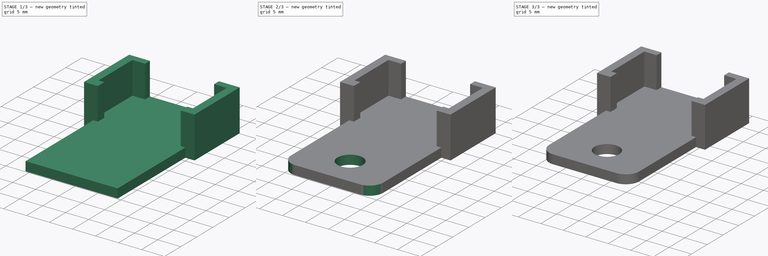
[diagram: build sequence overview — one tinted view per stage of 3, left to right]
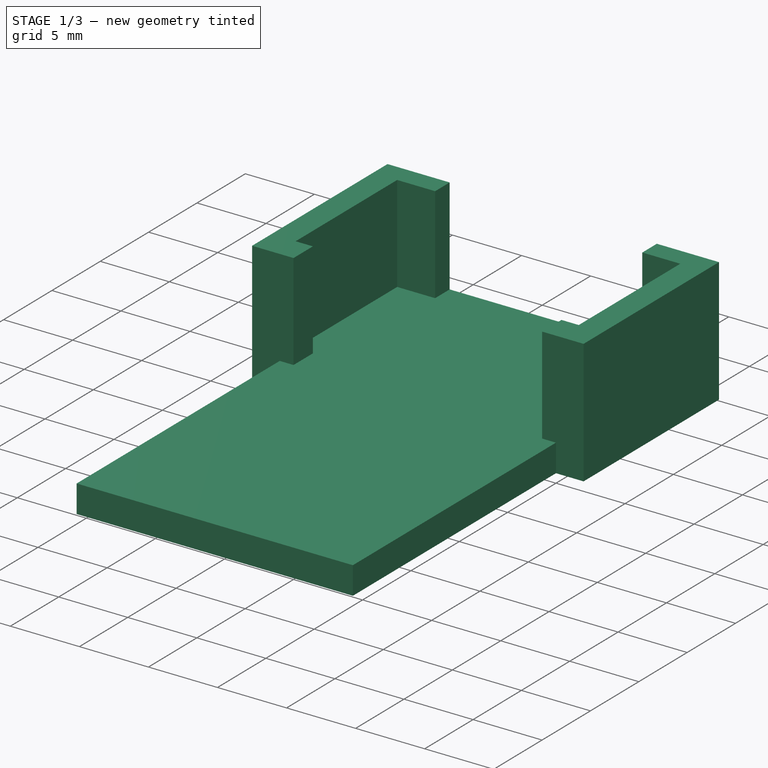
[diagram: stage 1 of 3 — iso view after this stage's code; geometry added in this stage tinted green]
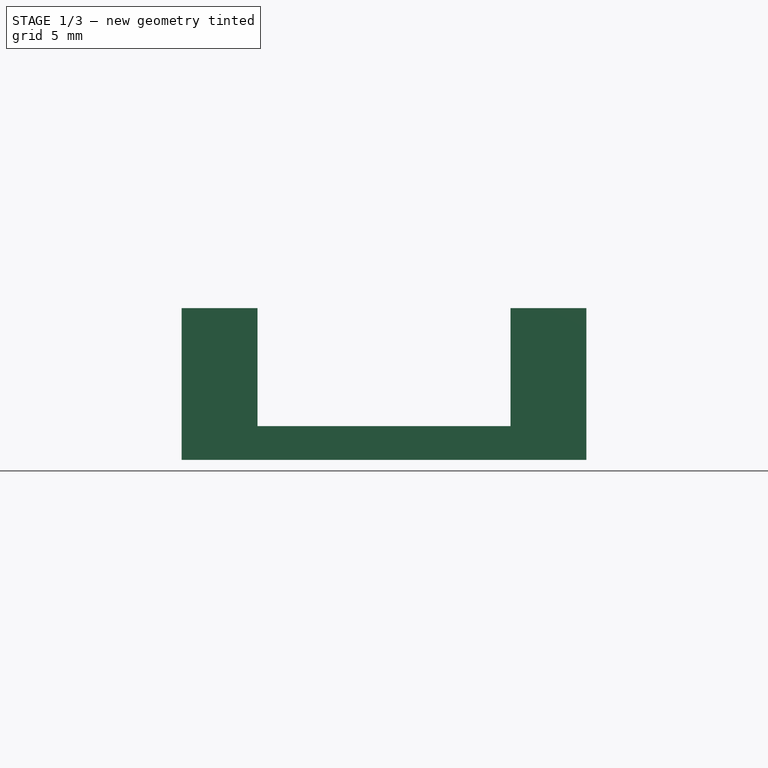
[diagram: stage 1 of 3 — front view after this stage's code; geometry added in this stage tinted green]
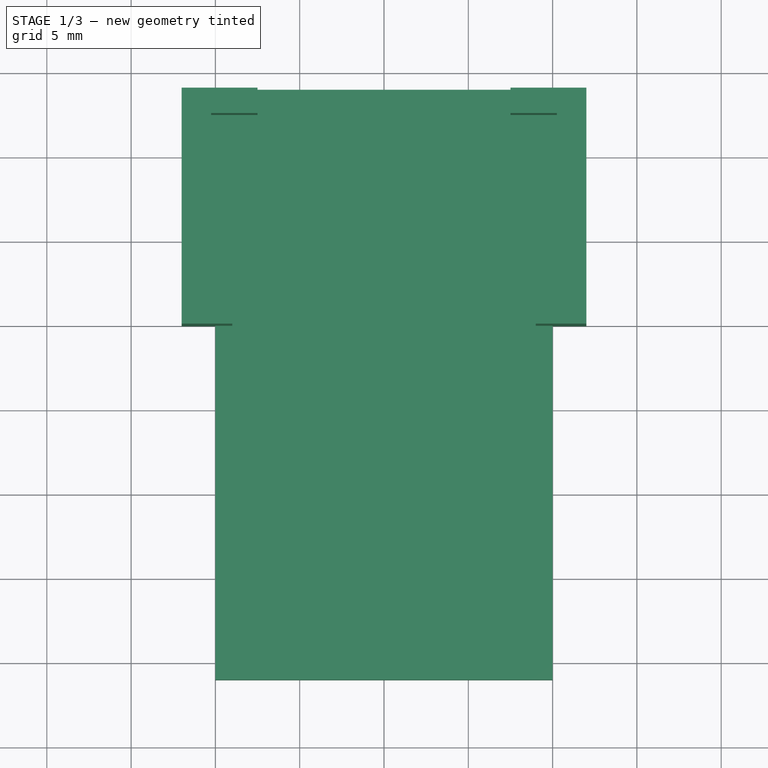
[diagram: stage 1 of 3 — top view after this stage's code; geometry added in this stage tinted green]
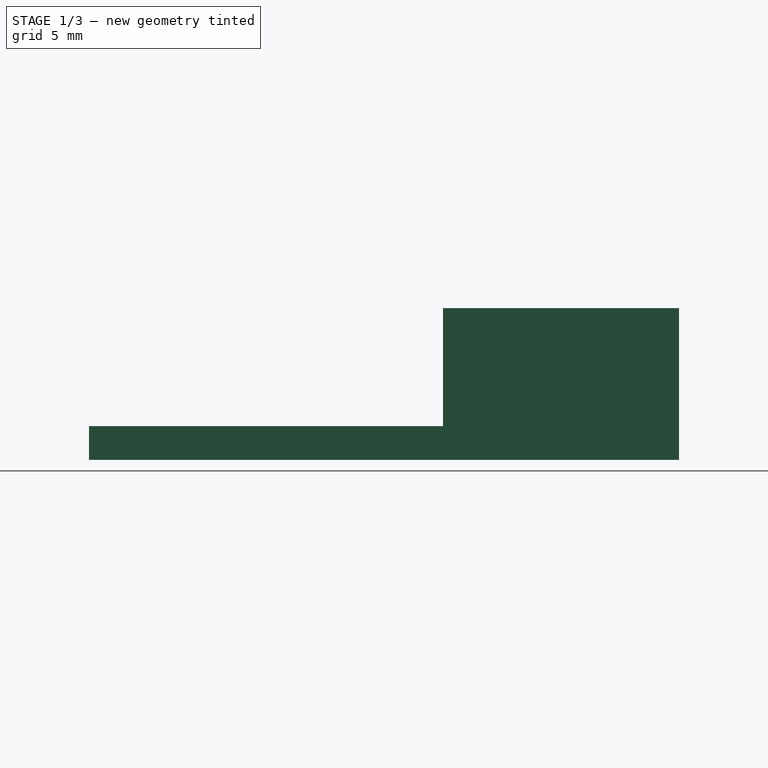
[diagram: stage 1 of 3 — right view after this stage's code; geometry added in this stage tinted green]
FCSTD DOCUMENT  (FreeCAD 0.18.4R)
Label: limit-switch
License: All rights reserved
LicenseURL: http://en.wikipedia.org/wiki/All_rights_reserved
objects: Sketcher::SketchObject×4, PartDesign::Pad×3, PartDesign::Pocket×2, PartDesign::Fillet×1, PartDesign::Body×1
note: 16 computed .brp shape members not serialized (recipe doc carries the construction recipe); baked Part::Feature solids carry a one-line shape summary decoded from their .brp

FEATURE [Sketcher::SketchObject] Sketch
  MapMode = 5
  Support = -> [XY_Plane]
  sketch-geometry (8):
    g0: LineSegment StartX=-12 StartY=14 StartZ=0 EndX=12 EndY=14 EndZ=0
    g1: LineSegment StartX=12 StartY=14 StartZ=0 EndX=12 EndY=0 EndZ=0
    g2: LineSegment StartX=12 StartY=0 StartZ=0 EndX=10 EndY=0 EndZ=0
    g3: LineSegment StartX=10 StartY=0 StartZ=0 EndX=10 EndY=-21 EndZ=0
    g4: LineSegment StartX=10 StartY=-21 StartZ=0 EndX=-10 EndY=-21 EndZ=0
    g5: LineSegment StartX=-10 StartY=-21 StartZ=0 EndX=-10 EndY=0 EndZ=0
    g6: LineSegment StartX=-10 StartY=0 StartZ=0 EndX=-12 EndY=0 EndZ=0
    g7: LineSegment StartX=-12 StartY=0 StartZ=0 EndX=-12 EndY=14 EndZ=0
  constraints (24):
    c: Horizontal(g0)
    c: Coincident(g1,g0)
    c: Vertical(g1)
    c: Coincident(g1,g2)
    c: Horizontal(g2)
    c: Coincident(g2,g3)
    c: Vertical(g3)
    c: Coincident(g3,g4)
    c: Horizontal(g4)
    c: Coincident(g4,g5)
    c: Vertical(g5)
    c: Coincident(g5,g6)
    c: Coincident(g6,g7)
    c: Coincident(g7,g0)
    c: Horizontal(g6)
    c: Vertical(g7)
    c: DistanceX(g0,g0) = 24
    c: DistanceX(g4,g4) = 20
    c: DistanceX(g6,g6) = 2
    c: DistanceY(g4,g0) = 35
    c: DistanceY(g1,g1) = 14
    c: Equal(g1,g7)
    c: PointOnObject(g5,g-1)
    c: DistanceX(g5,g-1) = 10
FEATURE [PartDesign::Pad] Pad
  Length = 2
  Length2 = 100
  Profile = -> Sketch
  Type = 0
FEATURE [Sketcher::SketchObject] Sketch001
  ExternalGeometry = -> [Pad]
  MapMode = 5
  Placement = pos=(0,0,2) rot=(0,0,1;0rad)
  Support = -> [Pad]
  sketch-geometry (18):
    g0: LineSegment StartX=-12 StartY=14 StartZ=0 EndX=-12 EndY=0 EndZ=0
    g1: LineSegment StartX=-12 StartY=0 StartZ=0 EndX=-9 EndY=0 EndZ=0
    g2: LineSegment StartX=-9 StartY=0 StartZ=0 EndX=-9 EndY=2 EndZ=0
    g3: LineSegment StartX=-9 StartY=2 StartZ=0 EndX=-10.25 EndY=2 EndZ=0
    g4: LineSegment StartX=-10.25 StartY=2 StartZ=0 EndX=-10.25 EndY=12.5 EndZ=0
    g5: LineSegment StartX=-10.25 StartY=14 StartZ=0 EndX=-12 EndY=14 EndZ=0
    g6: LineSegment StartX=12 StartY=14 StartZ=0 EndX=12 EndY=0 EndZ=0
    g7: LineSegment StartX=12 StartY=0 StartZ=0 EndX=9 EndY=0 EndZ=0
    g8: LineSegment StartX=9 StartY=0 StartZ=0 EndX=9 EndY=2 EndZ=0
    g9: LineSegment StartX=9 StartY=2 StartZ=0 EndX=10.25 EndY=2 EndZ=0
    g10: LineSegment StartX=10.25 StartY=2 StartZ=0 EndX=10.25 EndY=12.5 EndZ=0
    g11: LineSegment StartX=10.25 StartY=14 StartZ=0 EndX=12 EndY=14 EndZ=0
    g12: LineSegment StartX=-10.25 StartY=14 StartZ=0 EndX=-7.5 EndY=14 EndZ=0
    g13: LineSegment StartX=-7.5 StartY=14 StartZ=0 EndX=-7.5 EndY=12.5 EndZ=0
    g14: LineSegment StartX=-7.5 StartY=12.5 StartZ=0 EndX=-10.25 EndY=12.5 EndZ=0
    g15: LineSegment StartX=10.25 StartY=14 StartZ=0 EndX=7.5 EndY=14 EndZ=0
    g16: LineSegment StartX=7.5 StartY=14 StartZ=0 EndX=7.5 EndY=12.5 EndZ=0
    g17: LineSegment StartX=7.5 StartY=12.5 StartZ=0 EndX=10.25 EndY=12.5 EndZ=0
  constraints (50):
    c: Coincident(g-7,g0)
    c: Coincident(g0,g-7)
    c: Coincident(g0,g1)
    c: PointOnObject(g1,g-1)
    c: Coincident(g1,g2)
    c: Vertical(g2)
    c: Coincident(g2,g3)
    c: Horizontal(g3)
    c: Coincident(g3,g4)
    c: PointOnObject(g5,g-3)
    c: Vertical(g4)
    c: Coincident(g5,g0)
    c: Coincident(g6,g-5)
    c: Coincident(g6,g7)
    c: PointOnObject(g7,g-1)
    c: Coincident(g7,g8)
    c: Vertical(g8)
    c: Coincident(g8,g9)
    c: Horizontal(g9)
    c: Coincident(g9,g10)
    c: Vertical(g10)
    c: Coincident(g11,g-4)
    c: PointOnObject(g11,g-3)
    c: DistanceX(g1,g1) = 3
    c: DistanceX(g7,g7) = 3
    c: DistanceX(g5,g5) = 1.75
    c: DistanceX(g11,g11) = 1.75
    c: Coincident(g6,g11)
    c: DistanceY(g2,g2) = 2
    c: DistanceY(g8,g8) = 2
    c: Coincident(g5,g12)
    c: PointOnObject(g12,g-3)
    c: Coincident(g12,g13)
    c: Vertical(g13)
    c: Coincident(g13,g14)
    c: Horizontal(g14)
    c: Coincident(g11,g15)
    c: PointOnObject(g15,g-3)
    c: Coincident(g15,g16)
    c: Vertical(g16)
    c: Coincident(g16,g17)
    c: Horizontal(g17)
    c: DistanceY(g13,g13) = 1.5
    c: DistanceY(g16,g16) = 1.5
    c: DistanceX(g0,g13) = 4.5
    c: DistanceX(g15,g6) = 4.5
    c: Coincident(g4,g14)
    c: Coincident(g10,g17)
    c: DistanceX(g0,g4) = 1.75
    c: DistanceX(g10,g6) = 1.75
FEATURE [PartDesign::Pad] Pad001
  BaseFeature = -> Pad
  Length = 7
  Length2 = 100
  Profile = -> Sketch001
  Type = 0
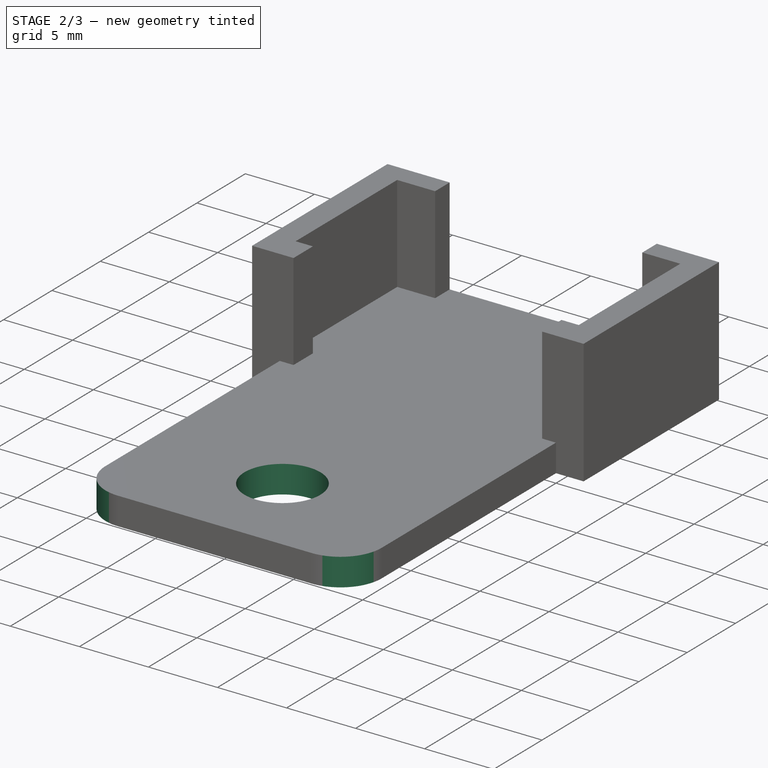
[diagram: stage 2 of 3 — iso view after this stage's code; geometry added in this stage tinted green]
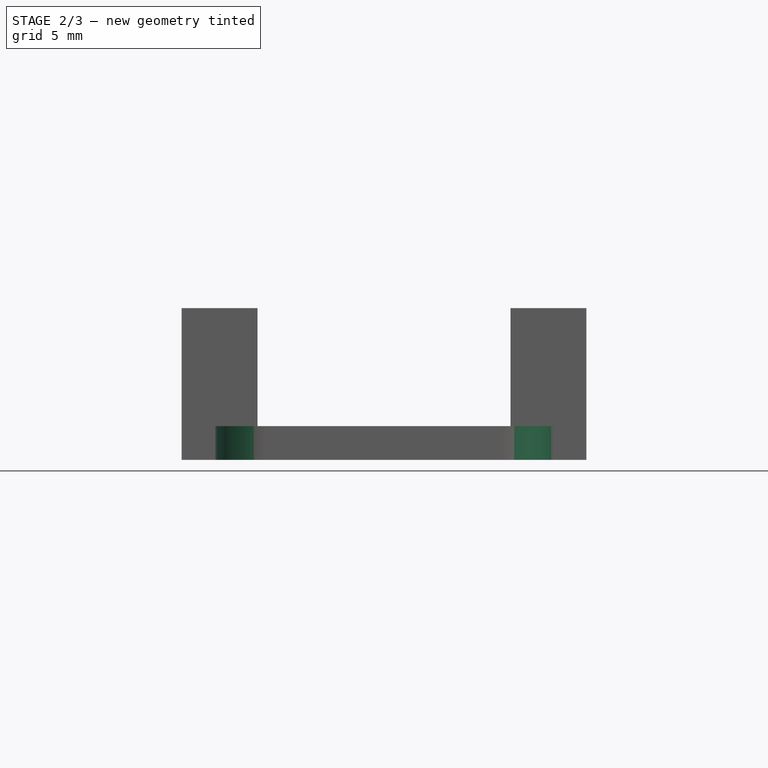
[diagram: stage 2 of 3 — front view after this stage's code; geometry added in this stage tinted green]
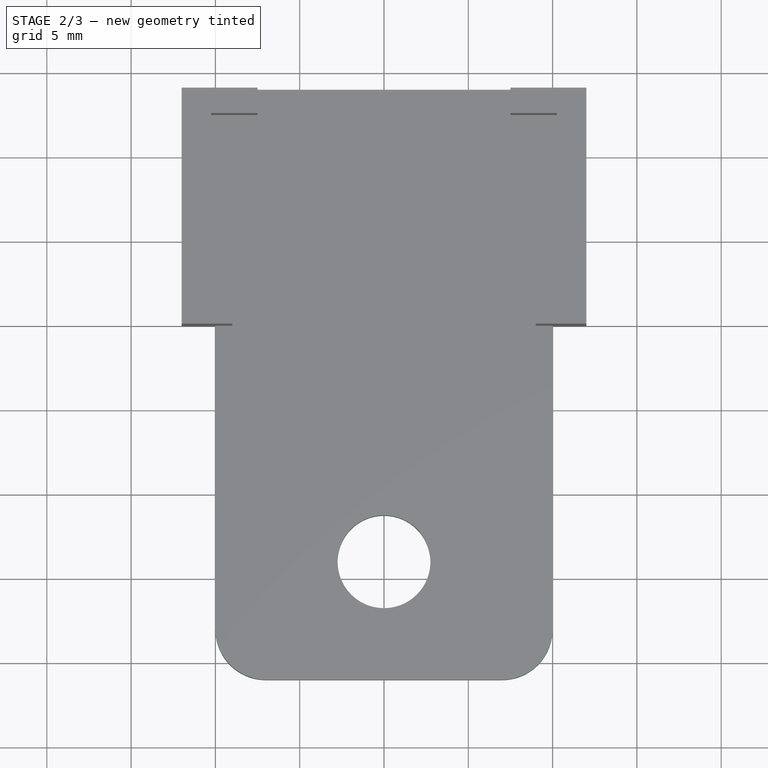
[diagram: stage 2 of 3 — top view after this stage's code; geometry added in this stage tinted green]
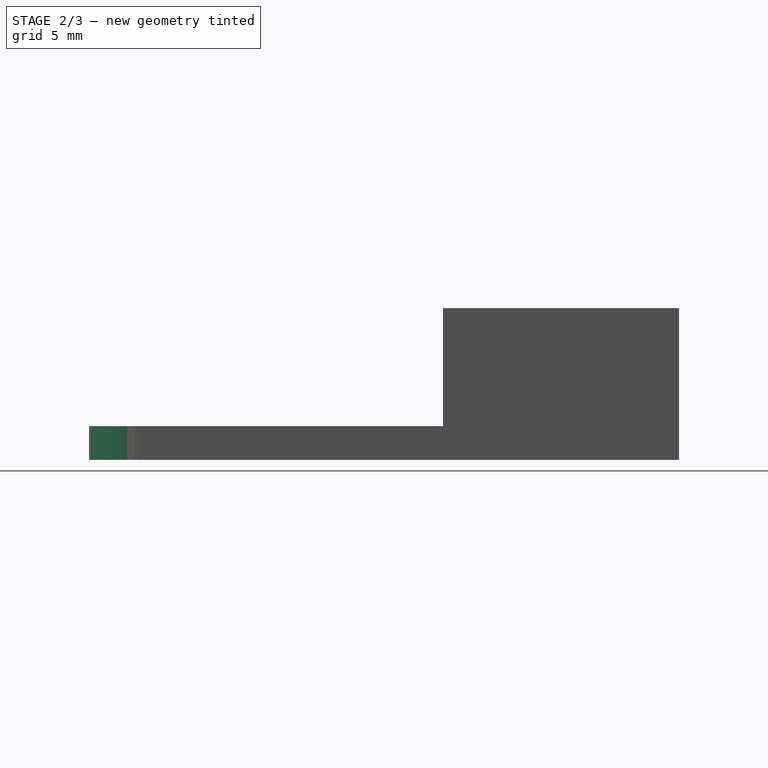
[diagram: stage 2 of 3 — right view after this stage's code; geometry added in this stage tinted green]
FEATURE [Sketcher::SketchObject] Sketch002
  ExternalGeometry = -> [Pad001]
  MapMode = 5
  Placement = pos=(0,0,2) rot=(0,0,1;0rad)
  Support = -> [Pad001]
  sketch-geometry (1):
    g0: Circle CenterX=0 CenterY=-14 CenterZ=0 NormalX=0 NormalY=0 NormalZ=1 AngleXU=0 Radius=2.75
  constraints (3):
    c: PointOnObject(g0,g-2)
    c: Diameter(g0) = 5.5
    c: DistanceY(g-3,g0) = 7
FEATURE [PartDesign::Pocket] Pocket
  BaseFeature = -> Pad001
  Length = 5
  Length2 = 100
  Profile = -> Sketch002
  Type = 0
FEATURE [PartDesign::Fillet] Fillet
  Base = -> Pocket [Edge56,Edge55]
  BaseFeature = -> Pocket
  Radius = 3
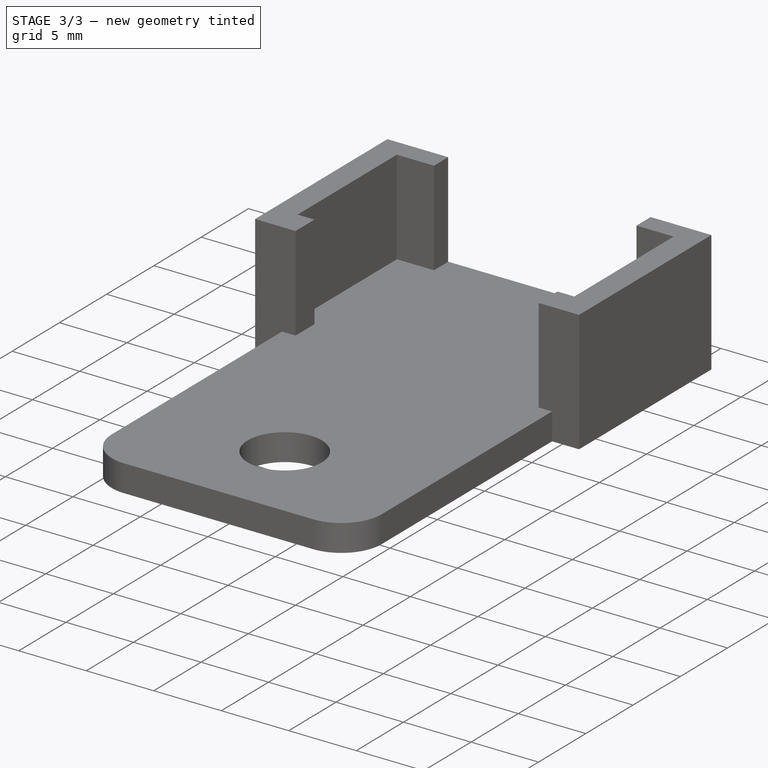
[diagram: stage 3 of 3 — iso view after this stage's code; geometry added in this stage tinted green]
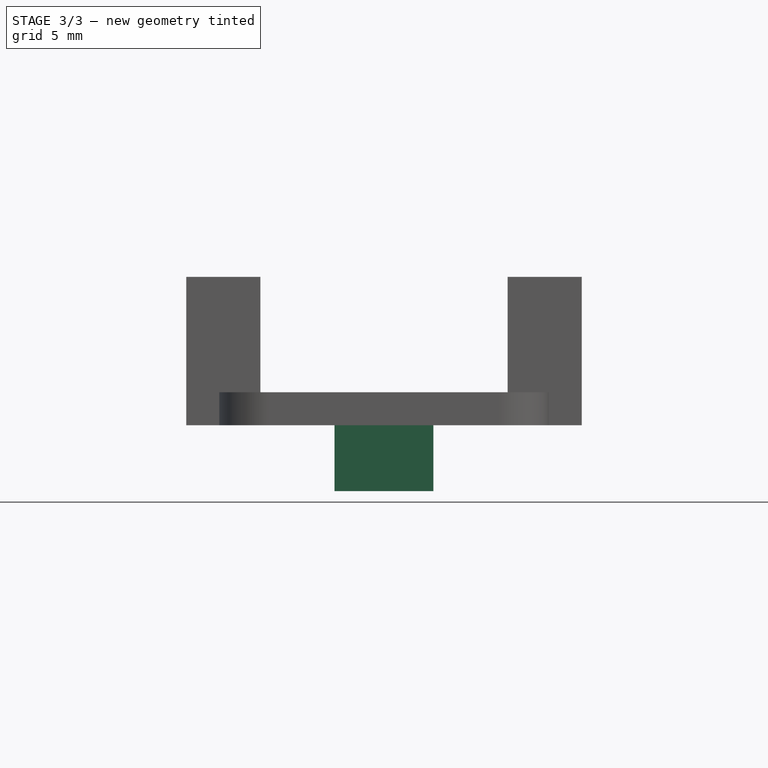
[diagram: stage 3 of 3 — front view after this stage's code; geometry added in this stage tinted green]
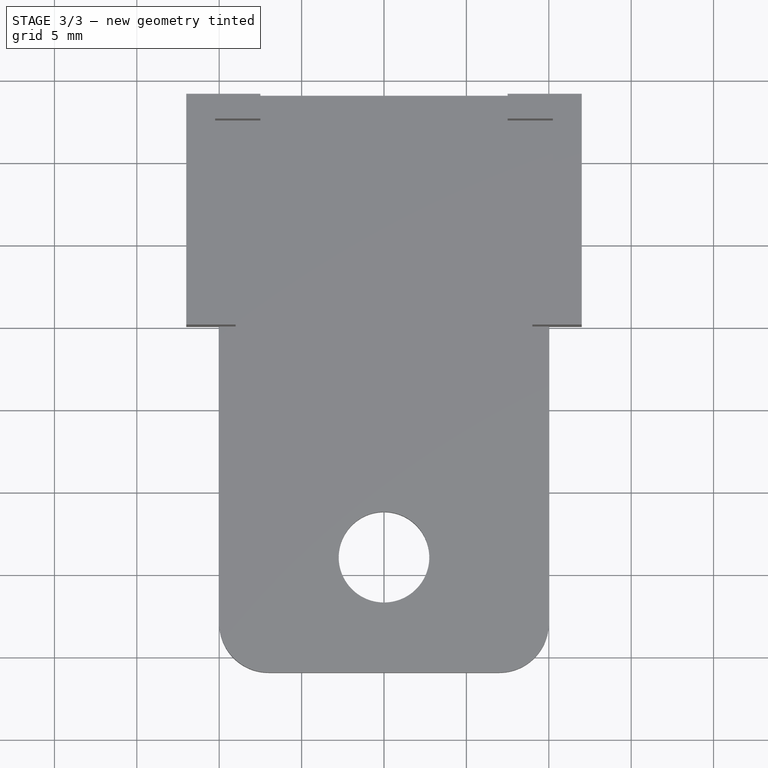
[diagram: stage 3 of 3 — top view after this stage's code; geometry added in this stage tinted green]
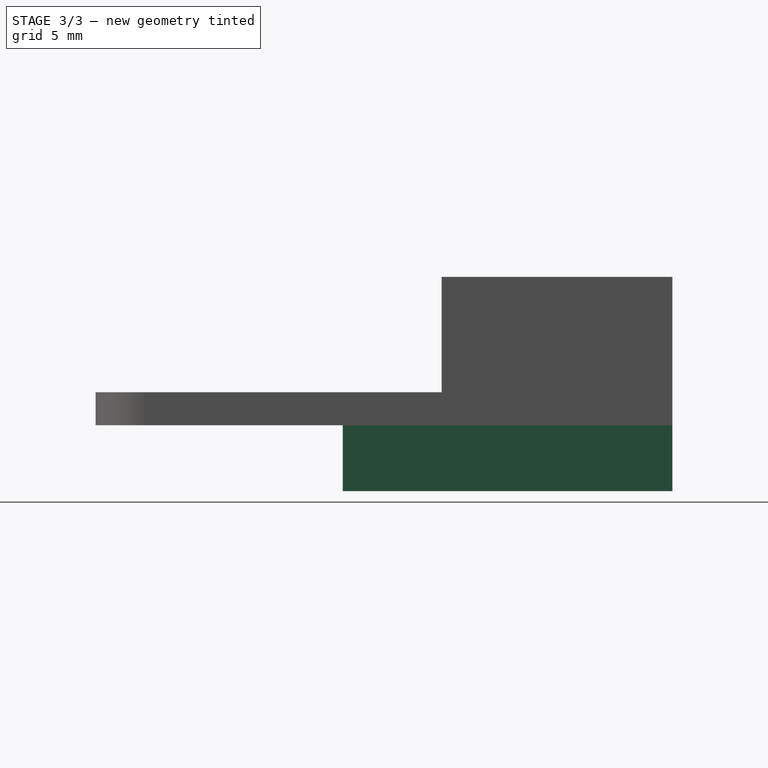
[diagram: stage 3 of 3 — right view after this stage's code; geometry added in this stage tinted green]
FEATURE [PartDesign::Pocket] Pocket001
  BaseFeature = -> Fillet
  Length = 5
  Length2 = 100
  Profile = -> Sketch002
  Type = 0
FEATURE [Sketcher::SketchObject] Sketch003
  ExternalGeometry = -> [Pocket001]
  MapMode = 5
  Placement = pos=(0,0,0) rot=(1,0,0;3.14159rad)
  Support = -> [Pocket001]
  sketch-geometry (4):
    g0: LineSegment StartX=-3 StartY=-14 StartZ=0 EndX=3 EndY=-14 EndZ=0
    g1: LineSegment StartX=3 StartY=-14 StartZ=0 EndX=3 EndY=6 EndZ=0
    g2: LineSegment StartX=3 StartY=6 StartZ=0 EndX=-3 EndY=6 EndZ=0
    g3: LineSegment StartX=-3 StartY=6 StartZ=0 EndX=-3 EndY=-14 EndZ=0
  constraints (12):
    c: Coincident(g0,g1)
    c: Coincident(g1,g2)
    c: Coincident(g2,g3)
    c: Coincident(g3,g0)
    c: Horizontal(g0)
    c: Horizontal(g2)
    c: Vertical(g1)
    c: Vertical(g3)
    c: PointOnObject(g0,g-3)
    c: DistanceX(g0,g0) = 6
    c: DistanceX(g2,g-1) = 3
    c: DistanceY(g1,g-4) = 8
FEATURE [PartDesign::Pad] Pad002
  BaseFeature = -> Pocket001
  Length = 4
  Length2 = 100
  Profile = -> Sketch003
  Type = 0
FEATURE [PartDesign::Body] Body
  Group = -> [Sketch,Pad,Sketch001,Pad001,Sketch002,Pocket,Fillet,Pocket001,Sketch003,Pad002]
  Origin = -> Origin
  Tip = -> Pad002
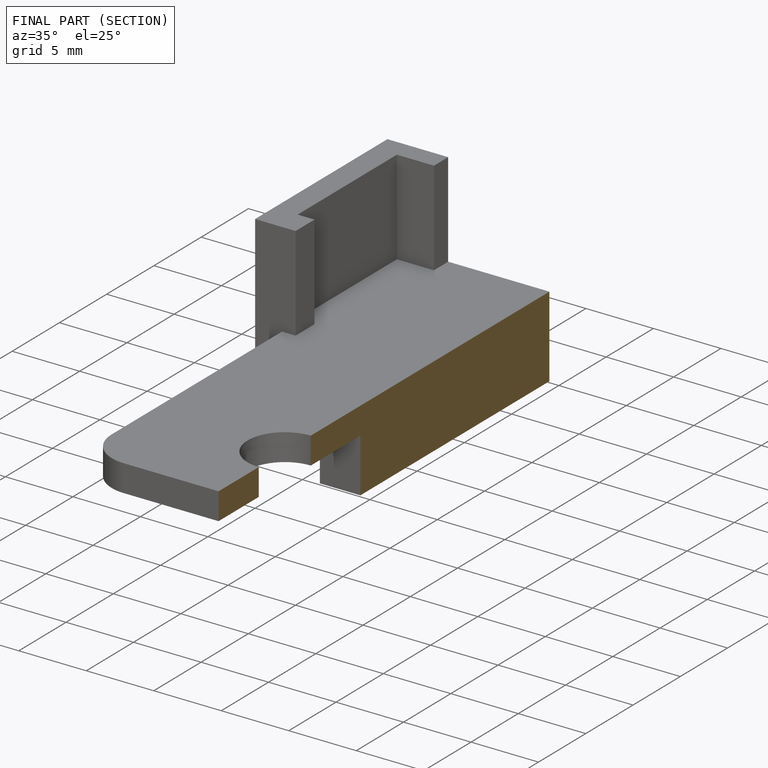
[diagram: finished part — half-section view (interior)]
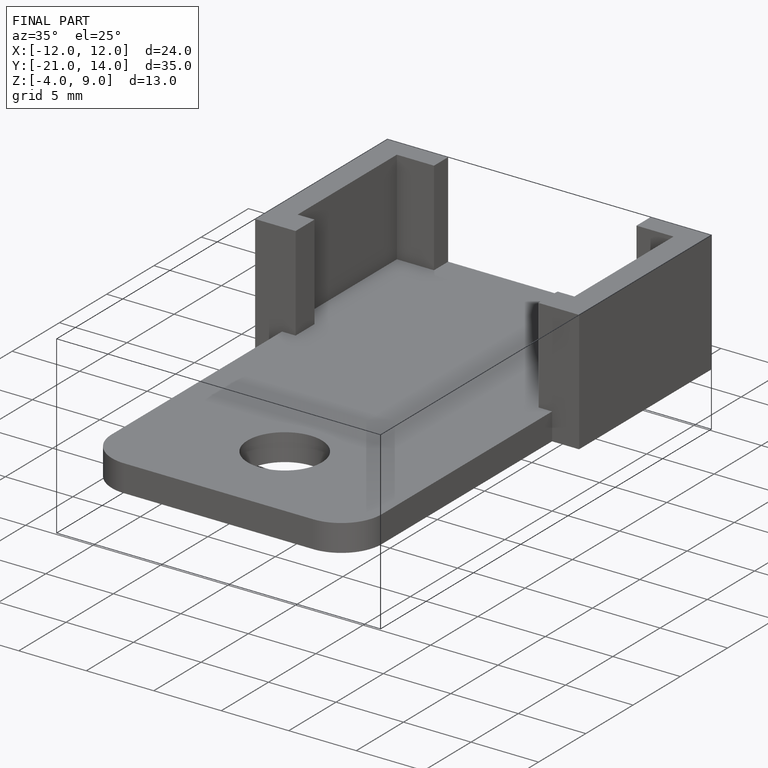
[diagram: finished part — iso view with bounding-box wireframe]
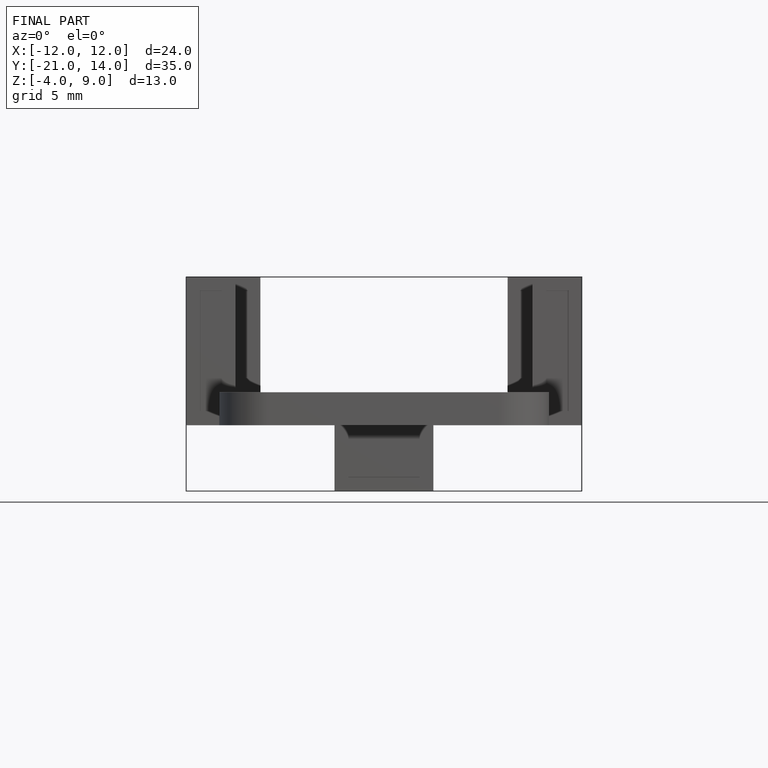
[diagram: finished part — front view with bounding-box wireframe]
